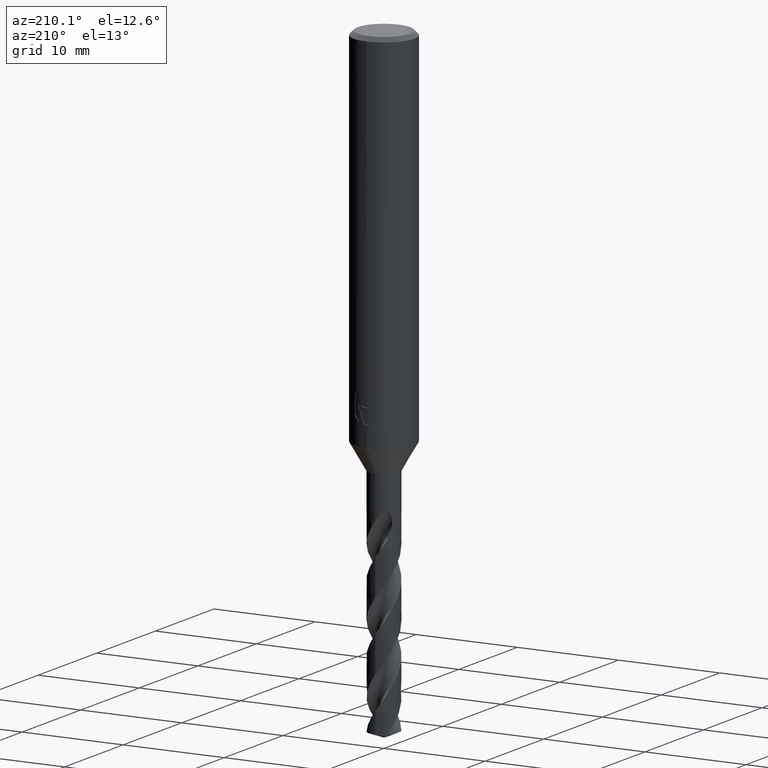
[diagram: clean part render]
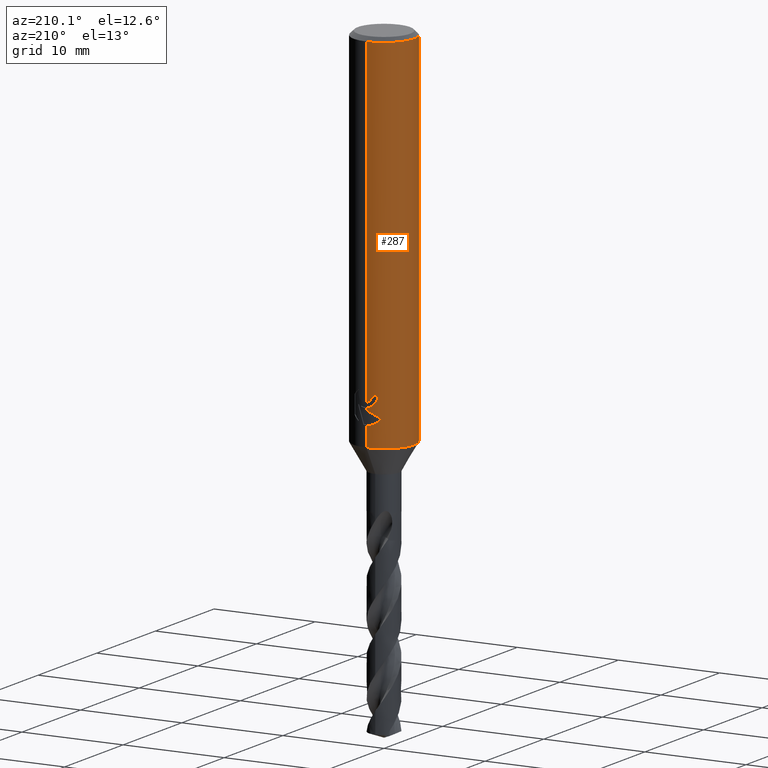
[diagram: same view with one face highlighted and labeled with its STEP entity id]
A machine part, auxiliary view. The second image highlights one B-rep face of the part: STEP entity #287.
In plain terms, the highlighted cylindrical surface (edge-blend (fillet) strip) has radius 3 mm, axis along (-0, -0, 1).
Its self-contained STEP definition (entity closure, byte-faithful):
#287=ADVANCED_FACE('',(#795),#796,.T.);
#291=VERTEX_POINT('',#800);
#327=VERTEX_POINT('',#838);
#331=EDGE_CURVE('',#357,#575,#842,.T.);
#357=VERTEX_POINT('',#870);
#359=EDGE_CURVE('',#575,#555,#872,.T.);
#383=EDGE_CURVE('',#561,#459,#899,.T.);
#391=EDGE_CURVE('',#431,#357,#907,.T.);
#411=EDGE_CURVE('',#513,#291,#928,.T.);
#431=VERTEX_POINT('',#949);
#459=VERTEX_POINT('',#982);
#477=VERTEX_POINT('',#1003);
#511=EDGE_CURVE('',#327,#695,#1040,.T.);
#513=VERTEX_POINT('',#1042);
#555=VERTEX_POINT('',#1090);
#561=VERTEX_POINT('',#1096);
#575=VERTEX_POINT('',#1112);
#591=EDGE_CURVE('',#555,#679,#1128,.T.);
#623=EDGE_CURVE('',#679,#291,#1163,.T.);
#633=EDGE_CURVE('',#459,#431,#1175,.T.);
#667=EDGE_CURVE('',#513,#327,#1211,.T.);
#679=VERTEX_POINT('',#1224);
#695=VERTEX_POINT('',#1242);
#719=EDGE_CURVE('',#477,#561,#1268,.T.);
#761=EDGE_CURVE('',#695,#477,#1314,.T.);
#795=FACE_OUTER_BOUND('',#1355,.T.);
#796=CYLINDRICAL_SURFACE('',#1356,3.0);
#800=CARTESIAN_POINT('',(0.0,3.0,-36.0));
#838=CARTESIAN_POINT('',(3.67381906146713E-016,-3.0,-0.399999999999999));
#842=LINE('',#2053,#2054);
#870=CARTESIAN_POINT('',(-2.06254272401587E-016,3.0,-32.5000801551881));
#872=ELLIPSE('',#2135,3.34478529612858,3.0);
#899=B_SPLINE_CURVE_WITH_KNOTS('',3,(#2274,#2275,#2276,#2277,#2278,#2279,#2280,#2281,#2282,#2283,#2284,#2285,#2286,#2287,#2288,#2289,#2290,#2291,#2292,#2293,#2294,#2295,#2296,#2297,#2298,#2299,#2300),.UNSPECIFIED.,.F.,.F.,(4,2,3,2,2,2,2,2,2,2,2,2,4),(-0.54422824842136,-0.27211412421068,0.0,0.272114124210678,0.544228248421357,0.817906359646673,1.09158447087199,1.36255924571499,1.63353402055798,1.90530456554772,2.17707511053746,2.4488456555272,2.72061620051693),.UNSPECIFIED.);
#907=B_SPLINE_CURVE_WITH_KNOTS('',3,(#2311,#2312,#2313,#2314,#2315,#2316,#2317,#2318,#2319,#2320,#2321,#2322,#2323,#2324),.UNSPECIFIED.,.F.,.F.,(4,2,2,2,2,2,4),(3.16026050654945,3.61086409539206,4.06146768423468,4.51207127307729,4.95991823802074,5.40776520296419,5.86282890530594),.UNSPECIFIED.);
#928=CIRCLE('',#2451,3.0);
#949=CARTESIAN_POINT('',(-1.0350734039088,2.81578107254819,-31.3171221986971));
#982=CARTESIAN_POINT('',(-0.562333990228013,2.94682549253162,-31.3171221986971));
#1003=CARTESIAN_POINT('',(-1.20768269592175E-015,3.0,-32.0232688117743));
#1040=CIRCLE('',#3448,3.0);
#1042=CARTESIAN_POINT('',(3.67381906146713E-016,-3.0,-36.0));
#1090=CARTESIAN_POINT('',(-1.337052752443,2.68557069115386,-33.3720803908795));
#1096=CARTESIAN_POINT('',(-0.486378944383045,2.96031003823262,-31.6432837483006));
#1112=CARTESIAN_POINT('',(-3.67366600472444E-016,3.0,-32.7128911336578));
#1128=B_SPLINE_CURVE_WITH_KNOTS('',3,(#3919,#3920,#3921,#3922,#3923,#3924,#3925,#3926,#3927,#3928,#3929,#3930,#3931,#3932,#3933,#3934),.UNSPECIFIED.,.F.,.F.,(4,2,2,2,2,2,2,4),(5.66023402257373,6.29060333517104,6.60504483258975,6.91948633000846,7.23392782742717,7.54836932484587,7.86141901111221,8.17446869737855),.UNSPECIFIED.);
#1163=LINE('',#4214,#4215);
#1175=CIRCLE('',#4258,3.0);
#1211=LINE('',#4528,#4529);
#1224=CARTESIAN_POINT('',(-2.46407913303377E-016,3.0,-34.0310253601033));
#1242=CARTESIAN_POINT('',(0.0,3.0,-0.399999999999999));
#1268=B_SPLINE_CURVE_WITH_KNOTS('',3,(#4692,#4693,#4694,#4695,#4696,#4697,#4698,#4699,#4700,#4701,#4702,#4703,#4704,#4705,#4706,#4707,#4708,#4709,#4710,#4711,#4712,#4713,#4714,#4715,#4716,#4717,#4718),.UNSPECIFIED.,.F.,.F.,(4,2,3,2,2,2,2,2,2,2,2,2,4),(-0.54422824842136,-0.27211412421068,0.0,0.272114124210678,0.544228248421357,0.817906359646673,1.09158447087199,1.36255924571499,1.63353402055798,1.90530456554772,2.17707511053746,2.4488456555272,2.72061620051693),.UNSPECIFIED.);
#1314=LINE('',#5275,#5276);
#1355=EDGE_LOOP('',(#5296,#5297,#5298,#5299,#5300,#5301,#5302,#5303,#5304,#5305,#5306,#5307));
#1356=AXIS2_PLACEMENT_3D('',#5308,#5309,#5310);
#2053=CARTESIAN_POINT('',(-3.67381906146713E-016,3.0,-18.2));
#2054=VECTOR('',#5341,1.0);
#2135=AXIS2_PLACEMENT_3D('',#5366,#5367,#5368);
#2274=CARTESIAN_POINT('',(0.665621182276714,2.92522622060321,-30.8140957881762));
#2275=CARTESIAN_POINT('',(0.728850563417096,2.91083867849353,-30.877518087557));
#2276=CARTESIAN_POINT('',(0.783900459387161,2.89602337967411,-30.9578702196133));
#2277=CARTESIAN_POINT('',(0.857188692916628,2.87518328740958,-31.1345580124299));
#2278=CARTESIAN_POINT('',(0.875400981188567,2.86943777108584,-31.2309373045166));
#2279=CARTESIAN_POINT('',(0.875400981188567,2.86943777108584,-31.3216420125868));
#2280=CARTESIAN_POINT('',(0.875400981188567,2.86943777108584,-31.412346720657));
#2281=CARTESIAN_POINT('',(0.857188692916629,2.87518328740958,-31.5087260127437));
#2282=CARTESIAN_POINT('',(0.783900459387161,2.89602337967411,-31.6854138055602));
#2283=CARTESIAN_POINT('',(0.728850563417096,2.91083867849353,-31.7657659376165));
#2284=CARTESIAN_POINT('',(0.60202838769231,2.93969645569731,-31.8929750586276));
#2285=CARTESIAN_POINT('',(0.5214778595293,2.95568533572518,-31.9483797636259));
#2286=CARTESIAN_POINT('',(0.34429909105015,2.98152194310932,-32.0221641076746));
#2287=CARTESIAN_POINT('',(0.247628172090375,2.99115403786358,-32.0405166027747));
#2288=CARTESIAN_POINT('',(0.0663244946631877,3.00062654348629,-32.0405166027747));
#2289=CARTESIAN_POINT('',(-0.0299285908853379,3.00115720326599,-32.0224875186921));
#2290=CARTESIAN_POINT('',(-0.206881310600538,2.99416773126077,-31.949244373347));
#2291=CARTESIAN_POINT('',(-0.287593937381961,2.98687212067831,-31.8940404490632));
#2292=CARTESIAN_POINT('',(-0.415200117492864,2.97182576996222,-31.7666805419979));
#2293=CARTESIAN_POINT('',(-0.470604049431396,2.96309385107775,-31.6859121102136));
#2294=CARTESIAN_POINT('',(-0.544183869965539,2.95046729924835,-31.5086992019516));
#2295=CARTESIAN_POINT('',(-0.562348199187247,2.94682278104247,-31.41223219425));
#2296=CARTESIAN_POINT('',(-0.562348199187247,2.94682278104247,-31.2310518309235));
#2297=CARTESIAN_POINT('',(-0.54418386996554,2.95046729924835,-31.134584823222));
#2298=CARTESIAN_POINT('',(-0.4706040494314,2.96309385107775,-30.95737191496));
#2299=CARTESIAN_POINT('',(-0.415200117492863,2.97182576996222,-30.8766034831756));
#2300=CARTESIAN_POINT('',(-0.351303479704285,2.97935997575782,-30.812830162452));
#2311=CARTESIAN_POINT('',(-0.944028754947609,2.84759718180646,-30.87109591768));
#2312=CARTESIAN_POINT('',(-1.00479265183033,2.82745289805341,-31.0168616503562));
#2313=CARTESIAN_POINT('',(-1.03510901790186,2.81576798068631,-31.1761006644519));
#2314=CARTESIAN_POINT('',(-1.03510901790186,2.81576798068631,-31.4765030570137));
#2315=CARTESIAN_POINT('',(-1.00479265183033,2.82745289805341,-31.6357420711094));
#2316=CARTESIAN_POINT('',(-0.88326485806506,2.86774146555976,-31.9272735364618));
#2317=CARTESIAN_POINT('',(-0.792109261194285,2.89554580131596,-32.0596991578702));
#2318=CARTESIAN_POINT('',(-0.582867737485067,2.94478284423827,-32.2682275153448));
#2319=CARTESIAN_POINT('',(-0.450640829386874,2.96956027684007,-32.358826497016));
#2320=CARTESIAN_POINT('',(-0.159819744133953,2.99930375982357,-32.4794282329782));
#2321=CARTESIAN_POINT('',(-0.00114290335869099,3.00371168811663,-32.5093686300866));
#2322=CARTESIAN_POINT('',(0.299461057962613,2.98886806232847,-32.5093686300866));
#2323=CARTESIAN_POINT('',(0.459264276215476,2.96836791045541,-32.4785566268234));
#2324=CARTESIAN_POINT('',(0.604975334200916,2.93836771779988,-32.4175314011172));
#2451=AXIS2_PLACEMENT_3D('',#5415,#5416,#5417);
#3448=AXIS2_PLACEMENT_3D('',#5552,#5553,#5554);
#3919=CARTESIAN_POINT('',(-1.53050642192579,2.58022287650581,-33.0319811255889));
#3920=CARTESIAN_POINT('',(-1.44691631248335,2.62980577312329,-33.2314887010961));
#3921=CARTESIAN_POINT('',(-1.32276760444366,2.69707077181617,-33.4113258593841));
#3922=CARTESIAN_POINT('',(-1.10973155101076,2.78826898930335,-33.6245951706909));
#3923=CARTESIAN_POINT('',(-1.02948996220254,2.81934349084513,-33.6916117853674));
#3924=CARTESIAN_POINT('',(-0.853932698223484,2.87738531454781,-33.8105216600777));
#3925=CARTESIAN_POINT('',(-0.758609991487907,2.90431263574779,-33.8624240602539));
#3926=CARTESIAN_POINT('',(-0.558469552260235,2.94934446690523,-33.9464055954533));
#3927=CARTESIAN_POINT('',(-0.453457041446381,2.96746268462387,-33.9785511641911));
#3928=CARTESIAN_POINT('',(-0.240810292537893,2.99223469602914,-34.0209924679526));
#3929=CARTESIAN_POINT('',(-0.133171317626829,2.99887501234033,-34.0312723335086));
#3930=CARTESIAN_POINT('',(0.0759830626177195,3.00085245803086,-34.0312723335086));
#3931=CARTESIAN_POINT('',(0.183273473896684,2.99629272230549,-34.0210815541729));
#3932=CARTESIAN_POINT('',(0.39543915272815,2.97573303917486,-33.9788816901513));
#3933=CARTESIAN_POINT('',(0.500318639064909,2.95974677710468,-33.9468871509919));
#3934=CARTESIAN_POINT('',(0.600330982089903,2.93932011049205,-33.9050368602192));
#4214=CARTESIAN_POINT('',(-3.67381906146713E-016,3.0,-18.2));
#4215=VECTOR('',#5683,1.0);
#4258=AXIS2_PLACEMENT_3D('',#5712,#5713,#5714);
#4528=CARTESIAN_POINT('',(3.67381906146713E-016,-3.0,-18.2));
#4529=VECTOR('',#5754,1.0);
#4692=CARTESIAN_POINT('',(0.665621182276714,2.92522622060321,-30.8140957881762));
#4693=CARTESIAN_POINT('',(0.728850563417096,2.91083867849353,-30.877518087557));
#4694=CARTESIAN_POINT('',(0.783900459387161,2.89602337967411,-30.9578702196133));
#4695=CARTESIAN_POINT('',(0.857188692916628,2.87518328740958,-31.1345580124299));
#4696=CARTESIAN_POINT('',(0.875400981188567,2.86943777108584,-31.2309373045166));
#4697=CARTESIAN_POINT('',(0.875400981188567,2.86943777108584,-31.3216420125868));
#4698=CARTESIAN_POINT('',(0.875400981188567,2.86943777108584,-31.412346720657));
#4699=CARTESIAN_POINT('',(0.857188692916629,2.87518328740958,-31.5087260127437));
#4700=CARTESIAN_POINT('',(0.783900459387161,2.89602337967411,-31.6854138055602));
#4701=CARTESIAN_POINT('',(0.728850563417096,2.91083867849353,-31.7657659376165));
#4702=CARTESIAN_POINT('',(0.60202838769231,2.93969645569731,-31.8929750586276));
#4703=CARTESIAN_POINT('',(0.5214778595293,2.95568533572518,-31.9483797636259));
#4704=CARTESIAN_POINT('',(0.34429909105015,2.98152194310932,-32.0221641076746));
#4705=CARTESIAN_POINT('',(0.247628172090375,2.99115403786358,-32.0405166027747));
#4706=CARTESIAN_POINT('',(0.0663244946631877,3.00062654348629,-32.0405166027747));
#4707=CARTESIAN_POINT('',(-0.0299285908853379,3.00115720326599,-32.0224875186921));
#4708=CARTESIAN_POINT('',(-0.206881310600538,2.99416773126077,-31.949244373347));
#4709=CARTESIAN_POINT('',(-0.287593937381961,2.98687212067831,-31.8940404490632));
#4710=CARTESIAN_POINT('',(-0.415200117492864,2.97182576996222,-31.7666805419979));
#4711=CARTESIAN_POINT('',(-0.470604049431396,2.96309385107775,-31.6859121102136));
#4712=CARTESIAN_POINT('',(-0.544183869965539,2.95046729924835,-31.5086992019516));
#4713=CARTESIAN_POINT('',(-0.562348199187247,2.94682278104247,-31.41223219425));
#4714=CARTESIAN_POINT('',(-0.562348199187247,2.94682278104247,-31.2310518309235));
#4715=CARTESIAN_POINT('',(-0.54418386996554,2.95046729924835,-31.134584823222));
#4716=CARTESIAN_POINT('',(-0.4706040494314,2.96309385107775,-30.95737191496));
#4717=CARTESIAN_POINT('',(-0.415200117492863,2.97182576996222,-30.8766034831756));
#4718=CARTESIAN_POINT('',(-0.351303479704285,2.97935997575782,-30.812830162452));
#5275=CARTESIAN_POINT('',(-3.67381906146713E-016,3.0,-18.2));
#5276=VECTOR('',#5879,1.0);
#5296=ORIENTED_EDGE('',*,*,#761,.T.);
#5297=ORIENTED_EDGE('',*,*,#719,.T.);
#5298=ORIENTED_EDGE('',*,*,#383,.T.);
#5299=ORIENTED_EDGE('',*,*,#633,.T.);
#5300=ORIENTED_EDGE('',*,*,#391,.T.);
#5301=ORIENTED_EDGE('',*,*,#331,.T.);
#5302=ORIENTED_EDGE('',*,*,#359,.T.);
#5303=ORIENTED_EDGE('',*,*,#591,.T.);
#5304=ORIENTED_EDGE('',*,*,#623,.T.);
#5305=ORIENTED_EDGE('',*,*,#411,.F.);
#5306=ORIENTED_EDGE('',*,*,#667,.T.);
#5307=ORIENTED_EDGE('',*,*,#511,.T.);
#5308=CARTESIAN_POINT('',(0.0,0.0,-18.2));
#5309=DIRECTION('',(-0.0,-0.0,1.0));
#5310=DIRECTION('',(0.0,1.0,0.0));
#5341=DIRECTION('',(0.0,0.0,-1.0));
#5366=CARTESIAN_POINT('',(0.0,0.0,-32.7128911336578));
#5367=DIRECTION('',(-0.442195774284071,0.0,0.896918556617774));
#5368=DIRECTION('',(0.896918556617774,-0.0,0.442195774284071));
#5415=CARTESIAN_POINT('',(0.0,0.0,-36.0));
#5416=DIRECTION('',(0.0,0.0,-1.0));
#5417=DIRECTION('',(0.0,1.0,0.0));
#5552=CARTESIAN_POINT('',(0.0,0.0,-0.399999999999999));
#5553=DIRECTION('',(0.0,0.0,-1.0));
#5554=DIRECTION('',(0.0,1.0,0.0));
#5683=DIRECTION('',(0.0,0.0,-1.0));
#5712=CARTESIAN_POINT('',(0.0,0.0,-31.3171221986971));
#5713=DIRECTION('',(0.0,-0.0,1.0));
#5714=DIRECTION('',(0.0,1.0,0.0));
#5754=DIRECTION('',(-0.0,-0.0,1.0));
#5879=DIRECTION('',(0.0,0.0,-1.0));